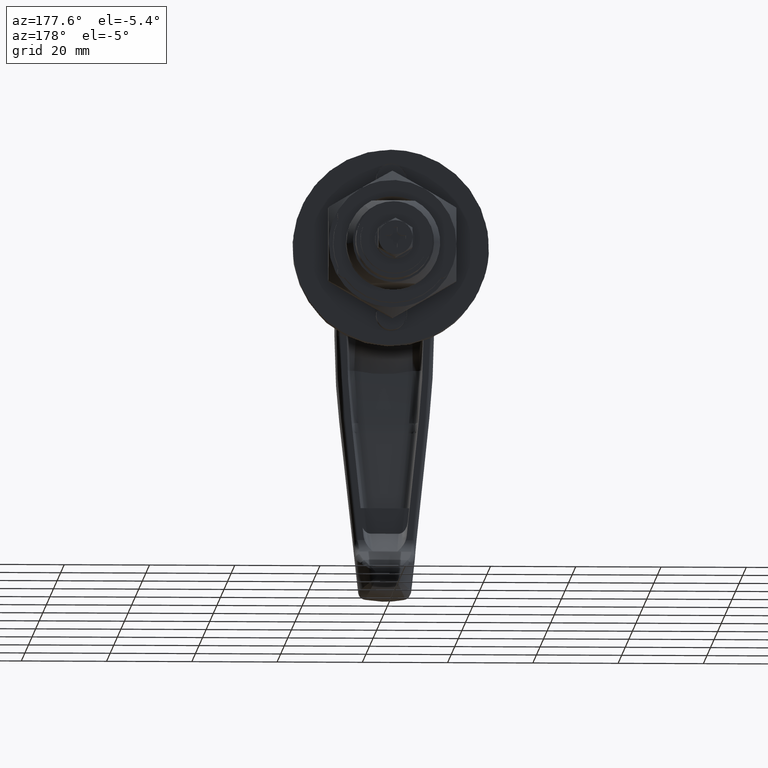
[diagram: clean part render]
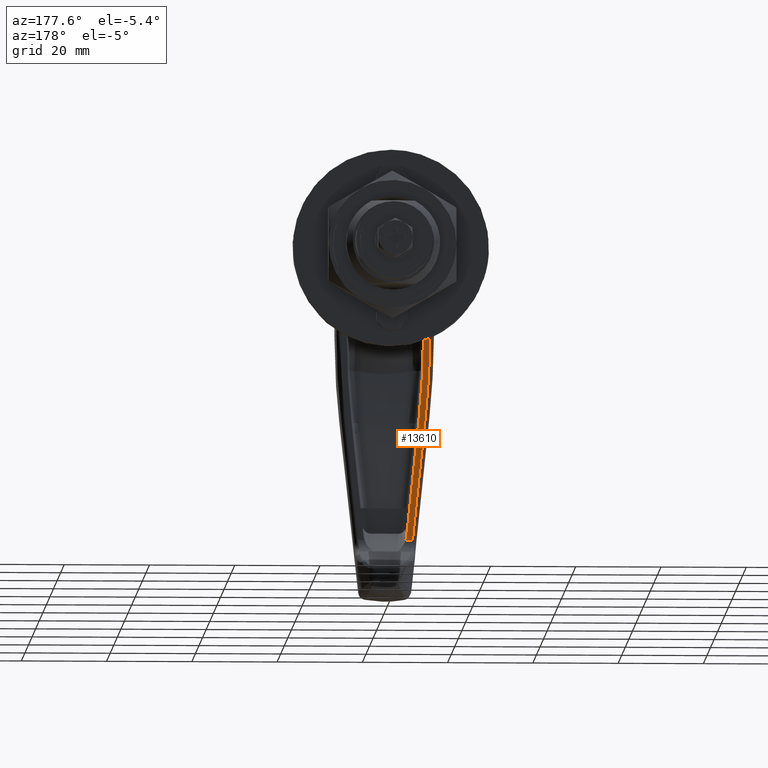
[diagram: same view with one face highlighted and labeled with its STEP entity id]
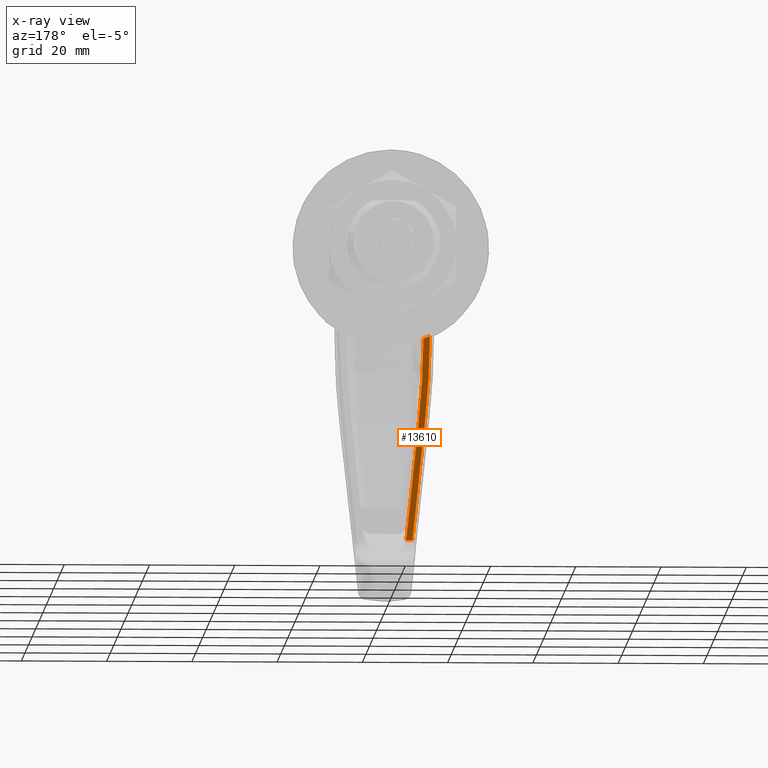
[diagram: x-ray of the same camera — body ghosted, the highlighted face saturated]
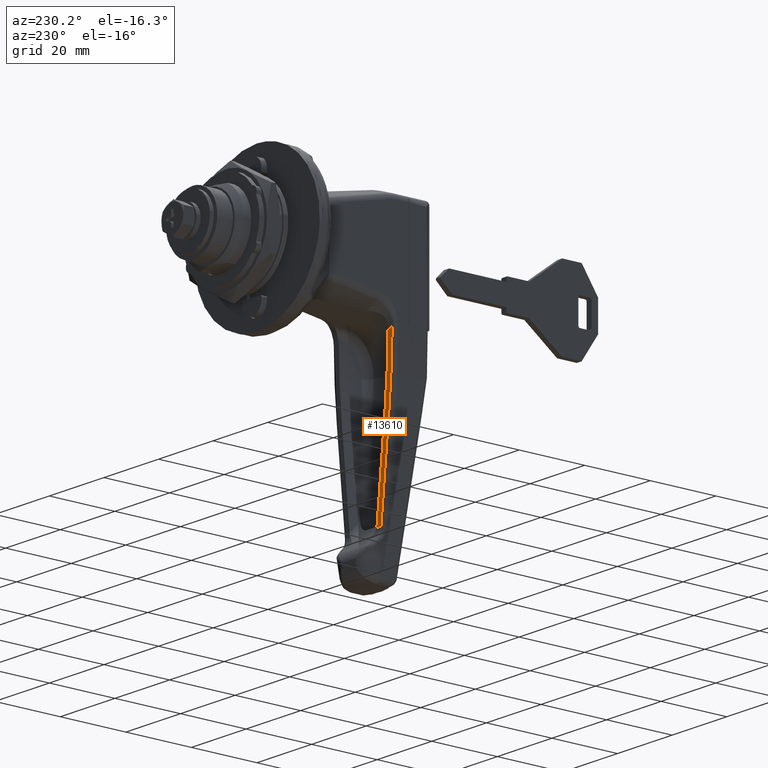
[diagram: same view with one face highlighted and labeled with its STEP entity id]
A machine part, auxiliary view. The second image highlights one B-rep face of the part: STEP entity #13610.
The next image is the same camera in x-ray: the body ghosted, the highlighted face saturated — about 1% of this face is hidden behind the body in this view.
A second angle (auxiliary view) of the same face is appended — the face is thin or edge-on in the first view.
In plain terms, the highlighted face is a freeform B-spline surface patch.
Its self-contained STEP definition (entity closure, byte-faithful):
#6676=CARTESIAN_POINT('',(-32.500000000000000,6.399345293772620,-65.843145999999791));
#6677=VERTEX_POINT('',#6676);
#6739=CARTESIAN_POINT('',(-32.500000000000000,9.419556925317592,-36.977991138855401));
#6740=VERTEX_POINT('',#6739);
#6756=CARTESIAN_POINT('',(-32.500000000000000,6.399345293772620,-65.843145999999791));
#6757=CARTESIAN_POINT('',(-32.500000000000000,9.419556925317592,-36.977991138855401));
#6758=QUASI_UNIFORM_CURVE('',1,(#6756,#6757),.UNSPECIFIED.,.F.,.U.);
#6759=EDGE_CURVE('',#6677,#6740,#6758,.T.);
#6789=CARTESIAN_POINT('',(-32.500000000000000,10.493978215575201,-17.817428348939600));
#6790=VERTEX_POINT('',#6789);
#6804=CARTESIAN_POINT('',(-32.500000000000000,9.419556925317624,-36.977991138855423));
#6805=CARTESIAN_POINT('',(-32.500000000000007,10.419245079932164,-27.423642994810109));
#6806=CARTESIAN_POINT('',(-32.500000000000000,10.493978215575179,-17.817428348939590));
#6814=(BOUNDED_CURVE()B_SPLINE_CURVE(2,(#6804,#6805,#6806),.UNSPECIFIED.,.F.,.U.)CURVE()GEOMETRIC_REPRESENTATION_ITEM()QUASI_UNIFORM_CURVE()RATIONAL_B_SPLINE_CURVE((1.0,0.998836848009269,1.0))REPRESENTATION_ITEM(''));
#6815=EDGE_CURVE('',#6740,#6790,#6814,.T.);
#10047=CARTESIAN_POINT('',(-32.500000000000000,8.995043839164191,-18.399163666846050));
#10048=VERTEX_POINT('',#10047);
#10049=CARTESIAN_POINT('',(-32.500000000000000,10.493978215575190,-17.817428348939590));
#10050=CARTESIAN_POINT('',(-32.500000000000000,9.753193248035954,-18.130667142358512));
#10051=CARTESIAN_POINT('',(-32.500000000000000,8.995043839164191,-18.399163666846029));
#10059=(BOUNDED_CURVE()B_SPLINE_CURVE(2,(#10049,#10050,#10051),.UNSPECIFIED.,.F.,.U.)CURVE()GEOMETRIC_REPRESENTATION_ITEM()QUASI_UNIFORM_CURVE()RATIONAL_B_SPLINE_CURVE((1.0,0.999554804589730,1.0))REPRESENTATION_ITEM(''));
#10060=EDGE_CURVE('',#6790,#10048,#10059,.T.);
#11876=CARTESIAN_POINT('',(-32.500000000000000,4.843317413707480,-65.843145999999791));
#11877=VERTEX_POINT('',#11876);
#11878=CARTESIAN_POINT('',(-32.500000000000000,5.068415382426390,-64.879701439244997));
#11879=VERTEX_POINT('',#11878);
#11880=CARTESIAN_POINT('',(-32.500000000000000,4.843317413707470,-65.843145999999891));
#11881=CARTESIAN_POINT('',(-32.500000000000000,5.015710133583077,-65.383422733475200));
#11882=CARTESIAN_POINT('',(-32.500000000000000,5.068415382426360,-64.879701439245110));
#11890=(BOUNDED_CURVE()B_SPLINE_CURVE(2,(#11880,#11881,#11882),.UNSPECIFIED.,.F.,.U.)CURVE()GEOMETRIC_REPRESENTATION_ITEM()QUASI_UNIFORM_CURVE()RATIONAL_B_SPLINE_CURVE((1.0,0.984426706137511,1.0))REPRESENTATION_ITEM(''));
#11891=EDGE_CURVE('',#11877,#11879,#11890,.T.);
#12065=CARTESIAN_POINT('',(-32.500000000000000,7.927700999999670,-37.552573999999836));
#12066=VERTEX_POINT('',#12065);
#12067=CARTESIAN_POINT('',(-32.500000000000000,5.068415382426390,-64.879701439244997));
#12068=CARTESIAN_POINT('',(-32.500000000000000,7.927700999999670,-37.552573999999836));
#12069=QUASI_UNIFORM_CURVE('',1,(#12067,#12068),.UNSPECIFIED.,.F.,.U.);
#12070=EDGE_CURVE('',#11879,#12066,#12069,.T.);
#12200=CARTESIAN_POINT('',(-32.500000000000000,7.927700999999670,-37.552573999999836));
#12201=CARTESIAN_POINT('',(-32.500000000000000,8.927013353029922,-28.001817137525901));
#12202=CARTESIAN_POINT('',(-32.500000000000000,8.995043839164191,-18.399163666846050));
#12210=(BOUNDED_CURVE()B_SPLINE_CURVE(2,(#12200,#12201,#12202),.UNSPECIFIED.,.F.,.U.)CURVE()GEOMETRIC_REPRESENTATION_ITEM()QUASI_UNIFORM_CURVE()RATIONAL_B_SPLINE_CURVE((1.0,0.998820030167785,1.0))REPRESENTATION_ITEM(''));
#12211=EDGE_CURVE('',#12066,#10048,#12210,.T.);
#13587=CARTESIAN_POINT('',(-32.500000000000000,4.843317413707480,-65.843145999999791));
#13588=CARTESIAN_POINT('',(-32.500000000000000,6.399345293772620,-65.843145999999791));
#13589=QUASI_UNIFORM_CURVE('',1,(#13587,#13588),.UNSPECIFIED.,.F.,.U.);
#13590=EDGE_CURVE('',#11877,#6677,#13589,.T.);
#13596=CARTESIAN_POINT('',(-32.500000000000000,4.561067023694986,-15.418543845352310));
#13597=CARTESIAN_POINT('',(-32.500000000000000,4.561067023694986,-68.242031791737219));
#13598=CARTESIAN_POINT('',(-32.500000000000000,10.776228858191921,-15.418543845352310));
#13599=CARTESIAN_POINT('',(-32.500000000000000,10.776228858191921,-68.242031791737219));
#13600=B_SPLINE_SURFACE_WITH_KNOTS('',1,1,((#13596,#13598),(#13597,#13599)),.UNSPECIFIED.,.F.,.F.,.U.,(2,2),(2,2),(0.0,52.823487946384923),(0.0,6.215161834496930),.UNSPECIFIED.);
#13601=ORIENTED_EDGE('',*,*,#13590,.T.);
#13602=ORIENTED_EDGE('',*,*,#6759,.T.);
#13603=ORIENTED_EDGE('',*,*,#6815,.T.);
#13604=ORIENTED_EDGE('',*,*,#10060,.T.);
#13605=ORIENTED_EDGE('',*,*,#12211,.F.);
#13606=ORIENTED_EDGE('',*,*,#12070,.F.);
#13607=ORIENTED_EDGE('',*,*,#11891,.F.);
#13608=EDGE_LOOP('',(#13601,#13602,#13603,#13604,#13605,#13606,#13607));
#13609=FACE_OUTER_BOUND('',#13608,.T.);
#13610=ADVANCED_FACE('',(#13609),#13600,.T.);